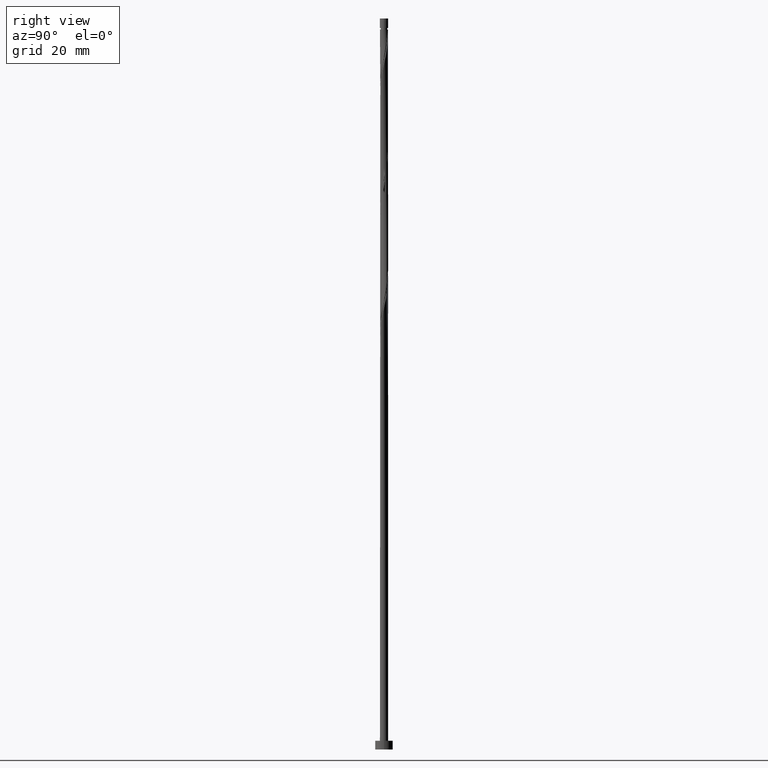
[diagram: clean part render]
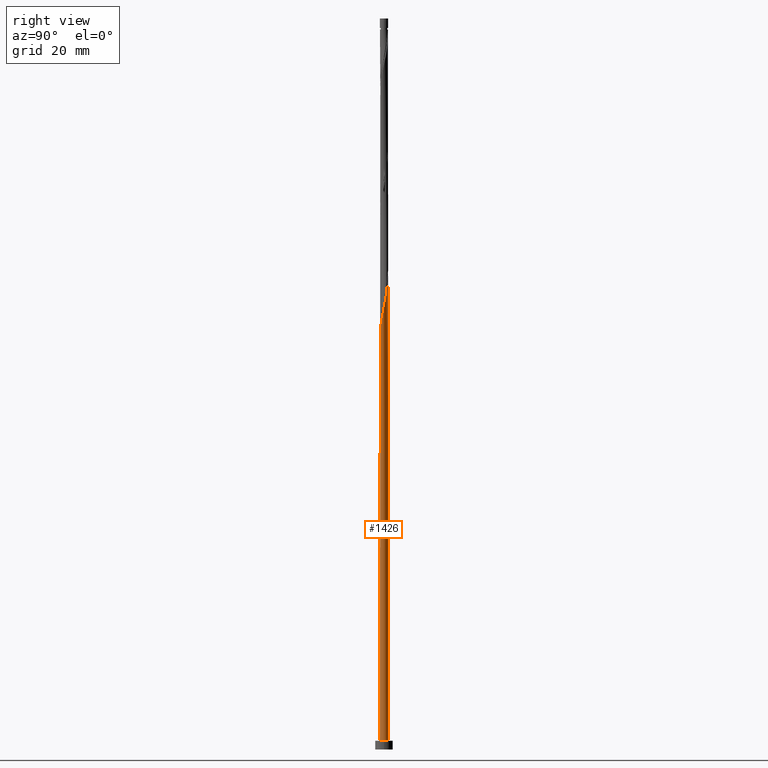
[diagram: same view with one face highlighted and labeled with its STEP entity id]
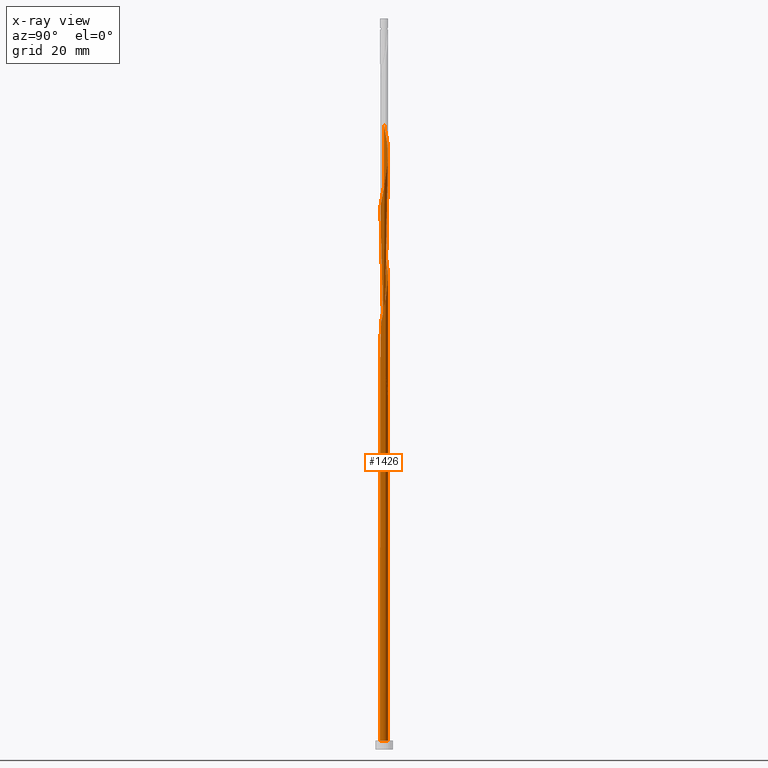
[diagram: x-ray of the same camera — body ghosted, the highlighted face saturated]
A machine part, right view. The second image highlights one B-rep face of the part: STEP entity #1426.
The next image is the same camera in x-ray: the body ghosted, the highlighted face saturated — about 0% of this face is hidden behind the body in this view.
In plain terms, the highlighted cylindrical surface (bore or boss wall) has radius 0.7 mm, axis along (-0, -0, -1).
Its self-contained STEP definition (entity closure, byte-faithful):
#10 = VERTEX_POINT ( 'NONE', #195 ) ;
#20 = VERTEX_POINT ( 'NONE', #666 ) ;
#22 = CARTESIAN_POINT ( 'NONE',  ( -0.5908483059530988957, 0.3913952458978566806, 63.20566018450762868 ) ) ;
#29 = CARTESIAN_POINT ( 'NONE',  ( -0.2479499672575592728, 0.6639373260301502100, 61.12232685117428588 ) ) ;
#47 = CARTESIAN_POINT ( 'NONE',  ( 0.3444661581381037174, -0.6093792463627035749, 92.89316018450765000 ) ) ;
#52 = CARTESIAN_POINT ( 'NONE',  ( 0.2479499672575591063, -0.6639373260301502100, 71.53899351784097860 ) ) ;
#61 = CARTESIAN_POINT ( 'NONE',  ( 0.1392982411949271748, -0.6860000000000008313, 91.85149351784093597 ) ) ;
#69 = CARTESIAN_POINT ( 'NONE',  ( 0.4731082062965567547, 0.5159153274858735427, 99.14316018450762158 ) ) ;
#75 = CARTESIAN_POINT ( 'NONE',  ( 0.7080626739698516747, 0.03064651513229503174, 75.70566018450765000 ) ) ;
#84 = CARTESIAN_POINT ( 'NONE',  ( -0.7000000000000008438, 0.07035264706814563229, 66.14032471723673723 ) ) ;
#91 = VERTEX_POINT ( 'NONE', #701 ) ;
#124 = CARTESIAN_POINT ( 'NONE',  ( -0.7000000000000005107, -0.07035264706814660374, 65.47932898511189137 ) ) ;
#127 = VERTEX_POINT ( 'NONE', #434 ) ;
#141 = AXIS2_PLACEMENT_3D ( 'NONE', #957, #748, #1276 ) ;
#150 = CARTESIAN_POINT ( 'NONE',  ( 0.000000000000000000, 0.000000000000000000, 1.500000000000000000 ) ) ;
#155 = CARTESIAN_POINT ( 'NONE',  ( -0.5908483059530988957, 0.3913952458978566806, 84.03899351784095018 ) ) ;
#165 = CARTESIAN_POINT ( 'NONE',  ( -0.07950515814432478068, -0.6954702939942489781, 69.97649351784095018 ) ) ;
#173 = CARTESIAN_POINT ( 'NONE',  ( -0.4731082062965565327, -0.5159153274858735427, 88.72649351784097860 ) ) ;
#178 = VERTEX_POINT ( 'NONE', #361 ) ;
#180 = DIRECTION ( 'NONE',  ( -0.000000000000000000, -0.000000000000000000, -1.000000000000000000 ) ) ;
#183 = CARTESIAN_POINT ( 'NONE',  ( 0.5548211666952566068, 0.4409823490186480788, 98.62232685117430719 ) ) ;
#190 = CARTESIAN_POINT ( 'NONE',  ( -0.2479499672575592728, 0.6639373260301502100, 81.95566018450765000 ) ) ;
#195 = CARTESIAN_POINT ( 'NONE',  ( -0.7000000000000009548, -9.108309940797330805E-16, 66.47462929264457898 ) ) ;
#198 = CARTESIAN_POINT ( 'NONE',  ( -0.6368631099858726996, 0.2905260386594006872, 105.3931601845076642 ) ) ;
#206 = DIRECTION ( 'NONE',  ( -0.000000000000000000, -0.000000000000000000, -1.000000000000000000 ) ) ;
#226 = CARTESIAN_POINT ( 'NONE',  ( -0.5159153274858735427, 0.4731082062965565327, 104.3514935178409644 ) ) ;
#231 = CARTESIAN_POINT ( 'NONE',  ( -0.6093792463627035749, -0.3444661581381037729, 66.85149351784099281 ) ) ;
#237 = CARTESIAN_POINT ( 'NONE',  ( -0.7000000000000010658, 0.03988161621250140704, 64.95551332049677740 ) ) ;
#253 = CARTESIAN_POINT ( 'NONE',  ( -0.6999999999999999556, 0.000000000000000000, 125.0000000000000000 ) ) ;
#255 = CARTESIAN_POINT ( 'NONE',  ( -0.7000000000000008438, -9.520620267335482297E-16, 65.14502440970406383 ) ) ;
#267 = CARTESIAN_POINT ( 'NONE',  ( 0.6828779140186465035, -0.1896568314209446382, 74.66399351784097860 ) ) ;
#275 = CARTESIAN_POINT ( 'NONE',  ( 0.6093792463627035749, 0.3444661581381037174, 77.26816018450763579 ) ) ;
#284 = CARTESIAN_POINT ( 'NONE',  ( 0.5908483059530988957, -0.3913952458978567361, 94.45566018450763579 ) ) ;
#292 = CARTESIAN_POINT ( 'NONE',  ( 0.6954702939942489781, -0.07950515814432480843, 96.01816018450763579 ) ) ;
#296 = CARTESIAN_POINT ( 'NONE',  ( -0.2905260386594006872, -0.6368631099858725886, 89.76816018450765000 ) ) ;
#327 = CARTESIAN_POINT ( 'NONE',  ( -0.4409823490186481343, 0.5548211666952566068, 103.8306601845076216 ) ) ;
#339 = VECTOR ( 'NONE', #180, 1000.000000000000000 ) ;
#346 = CARTESIAN_POINT ( 'NONE',  ( -0.6639373260301502100, 0.2479499672575592728, 65.28899351784097860 ) ) ;
#353 = ORIENTED_EDGE ( 'NONE', *, *, #547, .F. ) ;
#355 = CARTESIAN_POINT ( 'NONE',  ( -0.6639373260301502100, -0.2479499672575591618, 66.33066018450765000 ) ) ;
#361 = CARTESIAN_POINT ( 'NONE',  ( -0.6999999999999999556, 0.000000000000000000, 1.500000000000000000 ) ) ;
#370 = LINE ( 'NONE', #253, #1202 ) ;
#385 = CARTESIAN_POINT ( 'NONE',  ( -0.03064651513229499358, 0.7080626739698516747, 80.91399351784095018 ) ) ;
#390 = CARTESIAN_POINT ( 'NONE',  ( 0.1392982411949273691, 0.6860000000000008313, 60.60149351784097149 ) ) ;
#392 = CARTESIAN_POINT ( 'NONE',  ( 0.5159153274858735427, -0.4731082062965565327, 73.10149351784095018 ) ) ;
#398 = CARTESIAN_POINT ( 'NONE',  ( -0.6828779140186465035, 0.1896568314209445272, 85.08066018450759316 ) ) ;
#407 = CARTESIAN_POINT ( 'NONE',  ( -0.1392982411949270916, 0.6860000000000008313, 81.43482685117429298 ) ) ;
#408 = EDGE_CURVE ( 'NONE', #127, #1432, #790, .T. ) ;
#415 = CARTESIAN_POINT ( 'NONE',  ( -0.5159153274858735427, 0.4731082062965565327, 83.51816018450763579 ) ) ;
#429 = CARTESIAN_POINT ( 'NONE',  ( -0.1896568314209444717, 0.6828779140186467256, 62.16399351784097149 ) ) ;
#434 = CARTESIAN_POINT ( 'NONE',  ( -0.1392982411949270638, 0.6860000000000008313, 60.60149351784097149 ) ) ;
#438 = CARTESIAN_POINT ( 'NONE',  ( -0.7000000000000009548, -9.108309940797330805E-16, 66.47462929264457898 ) ) ;
#464 = DIRECTION ( 'NONE',  ( 0.000000000000000000, 1.000000000000000000, -2.973811673103098237E-14 ) ) ;
#466 = CARTESIAN_POINT ( 'NONE',  ( -0.2905260386594006872, -0.6368631099858725886, 68.93482685117430719 ) ) ;
#477 = CARTESIAN_POINT ( 'NONE',  ( 0.000000000000000000, 0.000000000000000000, 60.60149351784098570 ) ) ;
#483 = CARTESIAN_POINT ( 'NONE',  ( -0.4409823490186481343, 0.5548211666952566068, 62.16399351784097860 ) ) ;
#494 = CARTESIAN_POINT ( 'NONE',  ( -0.6999999999999999556, 0.000000000000000000, 125.0000000000000000 ) ) ;
#496 = EDGE_CURVE ( 'NONE', #20, #178, #941, .T. ) ;
#503 = CARTESIAN_POINT ( 'NONE',  ( 0.4409823490186480788, -0.5548211666952566068, 93.41399351784097860 ) ) ;
#508 = CARTESIAN_POINT ( 'NONE',  ( -0.4409823490186481343, 0.5548211666952566068, 82.99732685117427877 ) ) ;
#519 = CARTESIAN_POINT ( 'NONE',  ( 0.6828779140186465035, -0.1896568314209446382, 95.49732685117429298 ) ) ;
#525 = CIRCLE ( 'NONE', #873, 0.6999999999999999556 ) ;
#529 = CARTESIAN_POINT ( 'NONE',  ( -0.7080626739698517857, -0.03064651513229514970, 86.12232685117429298 ) ) ;
#535 = CARTESIAN_POINT ( 'NONE',  ( 0.6639373260301502100, 0.2479499672575591063, 76.74732685117430719 ) ) ;
#542 = CARTESIAN_POINT ( 'NONE',  ( -0.6093792463627035749, 0.3444661581381038284, 64.76816018450763579 ) ) ;
#547 = EDGE_CURVE ( 'NONE', #1432, #91, #939, .T. ) ;
#555 = CARTESIAN_POINT ( 'NONE',  ( -0.03064651513229499358, 0.7080626739698516747, 101.7473268511742930 ) ) ;
#556 = CARTESIAN_POINT ( 'NONE',  ( -0.7000000000000008438, -9.520620267335482297E-16, 65.14502440970406383 ) ) ;
#557 = AXIS2_PLACEMENT_3D ( 'NONE', #150, #1290, #634 ) ;
#571 = EDGE_CURVE ( 'NONE', #10, #1247, #1116, .T. ) ;
#585 = ORIENTED_EDGE ( 'NONE', *, *, #1386, .T. ) ;
#586 = CARTESIAN_POINT ( 'NONE',  ( -0.4731082062965565327, -0.5159153274858735427, 67.89316018450765000 ) ) ;
#622 = CARTESIAN_POINT ( 'NONE',  ( -0.6954702939942489781, 0.07950515814432472517, 85.60149351784097860 ) ) ;
#632 = CARTESIAN_POINT ( 'NONE',  ( 0.3913952458978567917, 0.5908483059530988957, 78.83066018450760737 ) ) ;
#634 = DIRECTION ( 'NONE',  ( 1.000000000000000000, 0.000000000000000000, 0.000000000000000000 ) ) ;
#644 = CARTESIAN_POINT ( 'NONE',  ( 0.5159153274858735427, -0.4731082062965565327, 93.93482685117429298 ) ) ;
#650 = ORIENTED_EDGE ( 'NONE', *, *, #717, .F. ) ;
#654 = CARTESIAN_POINT ( 'NONE',  ( -0.1896568314209445827, -0.6828779140186465035, 90.28899351784093597 ) ) ;
#662 = CARTESIAN_POINT ( 'NONE',  ( 0.6954702939942489781, -0.07950515814432480843, 75.18482685117432140 ) ) ;
#666 = CARTESIAN_POINT ( 'NONE',  ( 0.6999999999999999556, 0.000000000000000000, 1.500000000000000000 ) ) ;
#670 = CARTESIAN_POINT ( 'NONE',  ( -0.6828779140186465035, 0.1896568314209445272, 105.9139935178409644 ) ) ;
#680 = DIRECTION ( 'NONE',  ( -1.000000000000000000, 0.000000000000000000, 0.000000000000000000 ) ) ;
#701 = CARTESIAN_POINT ( 'NONE',  ( -0.7000000000000010658, 3.823241209717397836E-16, 106.8116910763707210 ) ) ;
#704 = ORIENTED_EDGE ( 'NONE', *, *, #717, .T. ) ;
#705 = CARTESIAN_POINT ( 'NONE',  ( -0.7000000000000010658, 0.03988161621250153194, 106.6221799871634488 ) ) ;
#709 = CARTESIAN_POINT ( 'NONE',  ( -0.1392982411949270638, 0.6860000000000008313, 60.60149351784097149 ) ) ;
#712 = CARTESIAN_POINT ( 'NONE',  ( -0.5548211666952566068, -0.4409823490186481343, 67.37232685117429298 ) ) ;
#714 = CARTESIAN_POINT ( 'NONE',  ( -0.7000000000000008438, -9.520620267335482297E-16, 65.14502440970406383 ) ) ;
#717 = EDGE_CURVE ( 'NONE', #1432, #178, #370, .T. ) ;
#723 = CARTESIAN_POINT ( 'NONE',  ( -0.6954702939942489781, 0.07950515814432472517, 64.76816018450763579 ) ) ;
#726 = DIRECTION ( 'NONE',  ( -0.000000000000000000, -0.000000000000000000, -1.000000000000000000 ) ) ;
#745 = CARTESIAN_POINT ( 'NONE',  ( 0.4731082062965567547, 0.5159153274858735427, 78.30982685117429298 ) ) ;
#748 = DIRECTION ( 'NONE',  ( 0.000000000000000000, 0.000000000000000000, 1.000000000000000000 ) ) ;
#753 = CARTESIAN_POINT ( 'NONE',  ( -0.6860000000000008313, -0.1392982411949272026, 86.64316018450763579 ) ) ;
#763 = CARTESIAN_POINT ( 'NONE',  ( 0.6368631099858725886, -0.2905260386594006872, 94.97649351784099281 ) ) ;
#766 = CARTESIAN_POINT ( 'NONE',  ( 0.6860000000000008313, 0.1392982411949270916, 97.05982685117427877 ) ) ;
#770 = ORIENTED_EDGE ( 'NONE', *, *, #838, .F. ) ;
#771 = CARTESIAN_POINT ( 'NONE',  ( 0.3913952458978567917, 0.5908483059530988957, 99.66399351784093597 ) ) ;
#790 =( BOUNDED_CURVE ( )  B_SPLINE_CURVE ( 2, ( #709, #29, #936, #483, #821, #22, #1250, #1261, #723, #237, #714 ),
 .UNSPECIFIED., .F., .T. ) 
 B_SPLINE_CURVE_WITH_KNOTS ( ( 3, 2, 2, 2, 2, 3 ),
 ( 0.000000000000000000, 0.01249999999999995559, 0.02500000000000002220, 0.03749999999999997780, 0.05000000000000004441, 0.05453220231385537409 ),
 .UNSPECIFIED. ) 
 CURVE ( )  GEOMETRIC_REPRESENTATION_ITEM ( )  RATIONAL_B_SPLINE_CURVE ( ( 0.9090909090909321533, 0.8978984914501479953, 0.9090909090909321533, 0.8978984914501479953, 0.9090909090909321533, 0.8978984914501479953, 0.9090909090909321533, 0.8978984914501479953, 0.9090909090909321533, 0.9050328050005962410, 0.9039174447099541654 ) ) 
 REPRESENTATION_ITEM ( '' )  );
#797 = ORIENTED_EDGE ( 'NONE', *, *, #408, .F. ) ;
#798 = CARTESIAN_POINT ( 'NONE',  ( 0.03064651513229518787, 0.7080626739698517857, 61.12232685117428588 ) ) ;
#809 = CARTESIAN_POINT ( 'NONE',  ( -0.2479499672575592728, 0.6639373260301502100, 102.7889935178409928 ) ) ;
#813 = CARTESIAN_POINT ( 'NONE',  ( -0.4731082062965565327, 0.5159153274858735427, 63.72649351784097149 ) ) ;
#821 = CARTESIAN_POINT ( 'NONE',  ( -0.5159153274858735427, 0.4731082062965565327, 62.68482685117428588 ) ) ;
#838 = EDGE_CURVE ( 'NONE', #91, #10, #967, .T. ) ;
#861 = ORIENTED_EDGE ( 'NONE', *, *, #571, .F. ) ;
#863 = CARTESIAN_POINT ( 'NONE',  ( 0.1896568314209446382, 0.6828779140186465035, 79.87232685117432140 ) ) ;
#869 = CARTESIAN_POINT ( 'NONE',  ( -0.6093792463627035749, -0.3444661581381037729, 87.68482685117430719 ) ) ;
#873 = AXIS2_PLACEMENT_3D ( 'NONE', #477, #1136, #464 ) ;
#875 = AXIS2_PLACEMENT_3D ( 'NONE', #1218, #206, #680 ) ;
#879 = CARTESIAN_POINT ( 'NONE',  ( 0.03064651513229507337, -0.7080626739698516747, 91.33066018450765000 ) ) ;
#886 = CARTESIAN_POINT ( 'NONE',  ( 0.5908483059530988957, -0.3913952458978567361, 73.62232685117429298 ) ) ;
#908 = EDGE_CURVE ( 'NONE', #127, #1247, #525, .T. ) ;
#909 = CARTESIAN_POINT ( 'NONE',  ( -0.7000000000000010658, 3.823241209717397836E-16, 106.8116910763707210 ) ) ;
#916 = CARTESIAN_POINT ( 'NONE',  ( -0.1392982411949270916, 0.6860000000000008313, 102.2681601845076500 ) ) ;
#924 = ORIENTED_EDGE ( 'NONE', *, *, #908, .T. ) ;
#936 = CARTESIAN_POINT ( 'NONE',  ( -0.3444661581381038284, 0.6093792463627035749, 61.64316018450764290 ) ) ;
#939 =( BOUNDED_CURVE ( )  B_SPLINE_CURVE ( 2, ( #255, #124, #960, #355, #231, #712, #586, #1037, #466, #1295, #165, #1283, #1079, #52, #1190, #1414, #392, #886, #1199, #267, #662, #75, #1072, #535, #275, #1311, #745, #632, #1419, #863, #1174, #385, #407, #190, #1288, #508, #415, #155, #972, #398, #622, #529, #753, #1182, #869, #989, #173, #1062, #296, #654, #1090, #879, #61, #968, #47, #503, #644, #284, #763, #519, #292, #978, #766, #1304, #1196, #183, #69, #771, #1021, #1439, #1349, #555, #916, #809, #1359, #327, #226, #1126, #198, #670, #1106, #705, #909 ),
 .UNSPECIFIED., .F., .T. ) 
 B_SPLINE_CURVE_WITH_KNOTS ( ( 3, 2, 2, 2, 2, 2, 2, 2, 2, 2, 2, 2, 2, 2, 2, 2, 2, 2, 2, 2, 2, 2, 2, 2, 2, 2, 2, 2, 2, 2, 2, 2, 2, 2, 2, 2, 2, 2, 2, 2, 2, 3 ),
 ( 0.05453220231385537409, 0.06250000000000000000, 0.07499999999999995559, 0.08750000000000002220, 0.09999999999999997780, 0.1125000000000000444, 0.1250000000000000000, 0.1374999999999999556, 0.1500000000000000222, 0.1624999999999999778, 0.1750000000000000444, 0.1875000000000000000, 0.1999999999999999556, 0.2125000000000000222, 0.2249999999999999778, 0.2375000000000000444, 0.2500000000000000000, 0.2624999999999999556, 0.2750000000000000222, 0.2874999999999999778, 0.3000000000000000444, 0.3125000000000000000, 0.3249999999999999556, 0.3375000000000000222, 0.3499999999999999778, 0.3625000000000000444, 0.3750000000000000000, 0.3874999999999999556, 0.4000000000000000222, 0.4124999999999999778, 0.4250000000000000444, 0.4375000000000000000, 0.4499999999999999556, 0.4625000000000000222, 0.4749999999999999778, 0.4875000000000000444, 0.5000000000000000000, 0.5124999999999999556, 0.5250000000000000222, 0.5374999999999999778, 0.5500000000000000444, 0.5545322023138553602 ),
 .UNSPECIFIED. ) 
 CURVE ( )  GEOMETRIC_REPRESENTATION_ITEM ( )  RATIONAL_B_SPLINE_CURVE ( ( 0.9039174447099541654, 0.9019565955404837965, 0.9090909090909321533, 0.8978984914501479953, 0.9090909090909321533, 0.8978984914501479953, 0.9090909090909321533, 0.8978984914501479953, 0.9090909090909321533, 0.8978984914501479953, 0.9090909090909321533, 0.8978984914501479953, 0.9090909090909321533, 0.8978984914501479953, 0.9090909090909321533, 0.8978984914501479953, 0.9090909090909321533, 0.8978984914501479953, 0.9090909090909321533, 0.8978984914501479953, 0.9090909090909321533, 0.8978984914501479953, 0.9090909090909321533, 0.8978984914501479953, 0.9090909090909321533, 0.8978984914501479953, 0.9090909090909321533, 0.8978984914501479953, 0.9090909090909321533, 0.8978984914501479953, 0.9090909090909321533, 0.8978984914501479953, 0.9090909090909321533, 0.8978984914501479953, 0.9090909090909321533, 0.8978984914501479953, 0.9090909090909321533, 0.8978984914501479953, 0.9090909090909321533, 0.8978984914501479953, 0.9090909090909321533, 0.8978984914501479953, 0.9090909090909321533, 0.8978984914501479953, 0.9090909090909321533, 0.8978984914501479953, 0.9090909090909321533, 0.8978984914501479953, 0.9090909090909321533, 0.8978984914501479953, 0.9090909090909321533, 0.8978984914501479953, 0.9090909090909321533, 0.8978984914501479953, 0.9090909090909321533, 0.8978984914501479953, 0.9090909090909321533, 0.8978984914501479953, 0.9090909090909321533, 0.8978984914501479953, 0.9090909090909321533, 0.8978984914501479953, 0.9090909090909321533, 0.8978984914501479953, 0.9090909090909321533, 0.8978984914501479953, 0.9090909090909321533, 0.8978984914501479953, 0.9090909090909321533, 0.8978984914501479953, 0.9090909090909321533, 0.8978984914501479953, 0.9090909090909321533, 0.8978984914501479953, 0.9090909090909321533, 0.8978984914501479953, 0.9090909090909321533, 0.8978984914501479953, 0.9090909090909321533, 0.8978984914501479953, 0.9090909090909321533, 0.9050328050005962410, 0.9039174447099540544 ) ) 
 REPRESENTATION_ITEM ( '' )  );
#941 = CIRCLE ( 'NONE', #141, 0.6999999999999999556 ) ;
#957 = CARTESIAN_POINT ( 'NONE',  ( 0.000000000000000000, 0.000000000000000000, 1.500000000000000000 ) ) ;
#960 = CARTESIAN_POINT ( 'NONE',  ( -0.6860000000000008313, -0.1392982411949272026, 65.80982685117432140 ) ) ;
#967 = LINE ( 'NONE', #494, #339 ) ;
#968 = CARTESIAN_POINT ( 'NONE',  ( 0.2479499672575591063, -0.6639373260301502100, 92.37232685117430719 ) ) ;
#972 = CARTESIAN_POINT ( 'NONE',  ( -0.6368631099858726996, 0.2905260386594006872, 84.55982685117429298 ) ) ;
#974 = FACE_OUTER_BOUND ( 'NONE', #1281, .T. ) ;
#978 = CARTESIAN_POINT ( 'NONE',  ( 0.7080626739698516747, 0.03064651513229503174, 96.53899351784096439 ) ) ;
#989 = CARTESIAN_POINT ( 'NONE',  ( -0.5548211666952566068, -0.4409823490186481343, 88.20566018450763579 ) ) ;
#1006 = CARTESIAN_POINT ( 'NONE',  ( -0.2905260386594006872, 0.6368631099858725886, 62.68482685117428588 ) ) ;
#1021 = CARTESIAN_POINT ( 'NONE',  ( 0.2905260386594007982, 0.6368631099858725886, 100.1848268511742788 ) ) ;
#1028 = CIRCLE ( 'NONE', #557, 0.6999999999999999556 ) ;
#1037 = CARTESIAN_POINT ( 'NONE',  ( -0.3913952458978566806, -0.5908483059530988957, 68.41399351784095018 ) ) ;
#1062 = CARTESIAN_POINT ( 'NONE',  ( -0.3913952458978566806, -0.5908483059530988957, 89.24732685117430719 ) ) ;
#1072 = CARTESIAN_POINT ( 'NONE',  ( 0.6860000000000008313, 0.1392982411949270916, 76.22649351784099281 ) ) ;
#1079 = CARTESIAN_POINT ( 'NONE',  ( 0.1392982411949271748, -0.6860000000000008313, 71.01816018450762158 ) ) ;
#1090 = CARTESIAN_POINT ( 'NONE',  ( -0.07950515814432478068, -0.6954702939942489781, 90.80982685117429298 ) ) ;
#1106 = CARTESIAN_POINT ( 'NONE',  ( -0.6954702939942489781, 0.07950515814432472517, 106.4348268511743072 ) ) ;
#1116 =( BOUNDED_CURVE ( )  B_SPLINE_CURVE ( 2, ( #438, #84, #1217, #346, #542, #1342, #813, #1433, #1006, #429, #1449, #798, #1229 ),
 .UNSPECIFIED., .F., .T. ) 
 B_SPLINE_CURVE_WITH_KNOTS ( ( 3, 2, 2, 2, 2, 2, 3 ),
 ( 0.9295322023138552492, 0.9375000000000000000, 0.9499999999999999556, 0.9625000000000000222, 0.9749999999999999778, 0.9875000000000000444, 1.000000000000000000 ),
 .UNSPECIFIED. ) 
 CURVE ( )  GEOMETRIC_REPRESENTATION_ITEM ( )  RATIONAL_B_SPLINE_CURVE ( ( 0.9039174447099542764, 0.9019565955404835744, 0.9090909090909321533, 0.8978984914501479953, 0.9090909090909321533, 0.8978984914501479953, 0.9090909090909321533, 0.8978984914501479953, 0.9090909090909321533, 0.8978984914501479953, 0.9090909090909321533, 0.8978984914501479953, 0.9090909090909321533 ) ) 
 REPRESENTATION_ITEM ( '' )  );
#1126 = CARTESIAN_POINT ( 'NONE',  ( -0.5908483059530988957, 0.3913952458978566806, 104.8723268511742930 ) ) ;
#1136 = DIRECTION ( 'NONE',  ( -5.502656983963528406E-30, -2.478176394252581969E-14, -1.000000000000000000 ) ) ;
#1174 = CARTESIAN_POINT ( 'NONE',  ( 0.07950515814432487782, 0.6954702939942489781, 80.39316018450762158 ) ) ;
#1182 = CARTESIAN_POINT ( 'NONE',  ( -0.6639373260301502100, -0.2479499672575591618, 87.16399351784097860 ) ) ;
#1190 = CARTESIAN_POINT ( 'NONE',  ( 0.3444661581381037174, -0.6093792463627035749, 72.05982685117432140 ) ) ;
#1196 = CARTESIAN_POINT ( 'NONE',  ( 0.6093792463627035749, 0.3444661581381037174, 98.10149351784097860 ) ) ;
#1199 = CARTESIAN_POINT ( 'NONE',  ( 0.6368631099858725886, -0.2905260386594006872, 74.14316018450763579 ) ) ;
#1202 = VECTOR ( 'NONE', #726, 1000.000000000000000 ) ;
#1217 = CARTESIAN_POINT ( 'NONE',  ( -0.6860000000000008313, 0.1392982411949272858, 65.80982685117429298 ) ) ;
#1218 = CARTESIAN_POINT ( 'NONE',  ( 0.000000000000000000, 0.000000000000000000, 125.0000000000000000 ) ) ;
#1229 = CARTESIAN_POINT ( 'NONE',  ( 0.1392982411949273691, 0.6860000000000008313, 60.60149351784097149 ) ) ;
#1247 = VERTEX_POINT ( 'NONE', #390 ) ;
#1250 = CARTESIAN_POINT ( 'NONE',  ( -0.6368631099858726996, 0.2905260386594006872, 63.72649351784098570 ) ) ;
#1261 = CARTESIAN_POINT ( 'NONE',  ( -0.6828779140186465035, 0.1896568314209445272, 64.24732685117429298 ) ) ;
#1274 = CYLINDRICAL_SURFACE ( 'NONE', #875, 0.6999999999999999556 ) ;
#1276 = DIRECTION ( 'NONE',  ( 1.000000000000000000, 0.000000000000000000, 0.000000000000000000 ) ) ;
#1281 = EDGE_LOOP ( 'NONE', ( #770, #353, #704, #585, #1307, #650, #797, #924, #861 ) ) ;
#1283 = CARTESIAN_POINT ( 'NONE',  ( 0.03064651513229507337, -0.7080626739698516747, 70.49732685117432140 ) ) ;
#1288 = CARTESIAN_POINT ( 'NONE',  ( -0.3444661581381038284, 0.6093792463627035749, 82.47649351784096439 ) ) ;
#1290 = DIRECTION ( 'NONE',  ( 0.000000000000000000, 0.000000000000000000, 1.000000000000000000 ) ) ;
#1295 = CARTESIAN_POINT ( 'NONE',  ( -0.1896568314209445827, -0.6828779140186465035, 69.45566018450765000 ) ) ;
#1304 = CARTESIAN_POINT ( 'NONE',  ( 0.6639373260301502100, 0.2479499672575591063, 97.58066018450766421 ) ) ;
#1307 = ORIENTED_EDGE ( 'NONE', *, *, #496, .T. ) ;
#1311 = CARTESIAN_POINT ( 'NONE',  ( 0.5548211666952566068, 0.4409823490186480788, 77.78899351784095018 ) ) ;
#1342 = CARTESIAN_POINT ( 'NONE',  ( -0.5548211666952563847, 0.4409823490186481898, 64.24732685117427877 ) ) ;
#1349 = CARTESIAN_POINT ( 'NONE',  ( 0.07950515814432487782, 0.6954702939942489781, 101.2264935178409502 ) ) ;
#1359 = CARTESIAN_POINT ( 'NONE',  ( -0.3444661581381038284, 0.6093792463627035749, 103.3098268511743214 ) ) ;
#1386 = EDGE_CURVE ( 'NONE', #178, #20, #1028, .T. ) ;
#1414 = CARTESIAN_POINT ( 'NONE',  ( 0.4409823490186480788, -0.5548211666952566068, 72.58066018450763579 ) ) ;
#1419 = CARTESIAN_POINT ( 'NONE',  ( 0.2905260386594007982, 0.6368631099858725886, 79.35149351784099281 ) ) ;
#1426 = ADVANCED_FACE ( 'NONE', ( #974 ), #1274, .T. ) ;
#1432 = VERTEX_POINT ( 'NONE', #556 ) ;
#1433 = CARTESIAN_POINT ( 'NONE',  ( -0.3913952458978566806, 0.5908483059530988957, 63.20566018450761447 ) ) ;
#1439 = CARTESIAN_POINT ( 'NONE',  ( 0.1896568314209446382, 0.6828779140186465035, 100.7056601845076216 ) ) ;
#1449 = CARTESIAN_POINT ( 'NONE',  ( -0.07950515814432469741, 0.6954702939942489781, 61.64316018450764290 ) ) ;